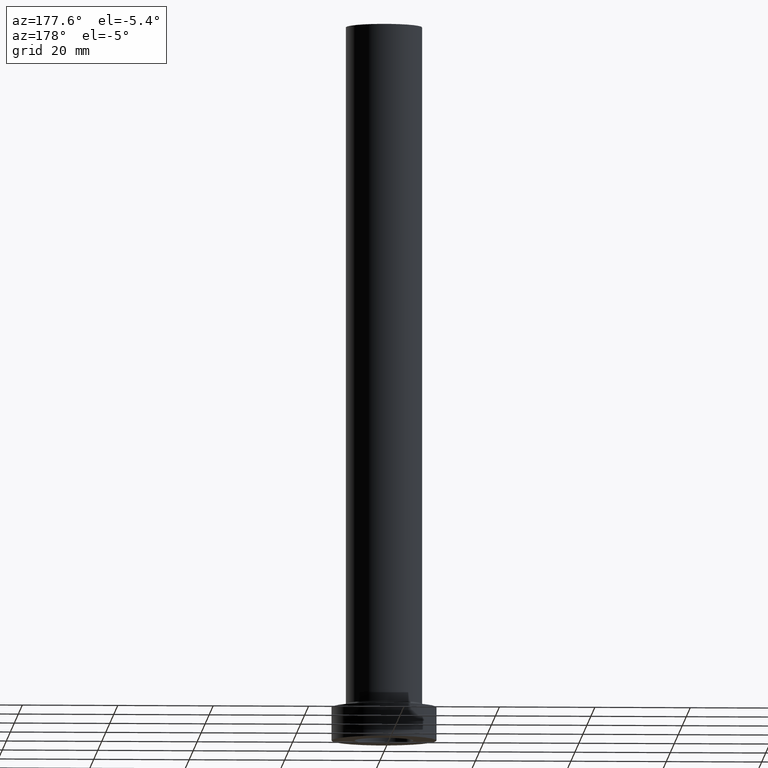
[diagram: clean part render]
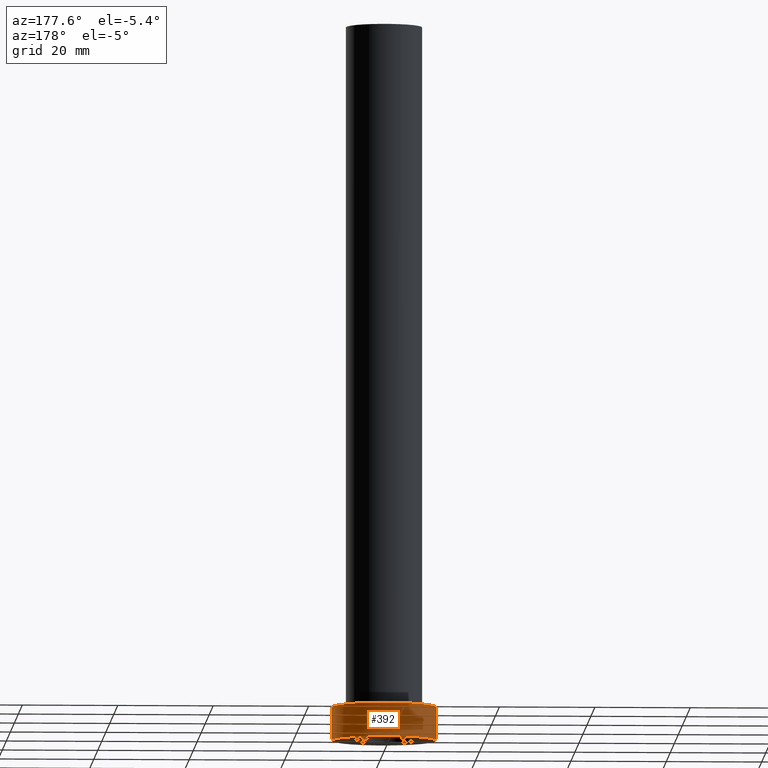
[diagram: same view with one face highlighted and labeled with its STEP entity id]
A machine part, auxiliary view. The second image highlights one B-rep face of the part: STEP entity #392.
In plain terms, the highlighted cylindrical surface (partial cylindrical patch) has radius 11 mm, axis along (-0, -0, -1).
Its self-contained STEP definition (entity closure, byte-faithful):
#21 = CARTESIAN_POINT ( 'NONE',  ( 11.00000000000000000, 1.347111479062088405E-15, 0.000000000000000000 ) ) ;
#24 = EDGE_CURVE ( 'NONE', #144, #366, #30, .T. ) ;
#29 = ORIENTED_EDGE ( 'NONE', *, *, #373, .F. ) ;
#30 = CIRCLE ( 'NONE', #189, 11.00000000000000000 ) ;
#33 = CIRCLE ( 'NONE', #384, 11.00000000000000000 ) ;
#41 = VECTOR ( 'NONE', #55, 1000.000000000000000 ) ;
#50 = CARTESIAN_POINT ( 'NONE',  ( 0.000000000000000000, 0.000000000000000000, 7.000000000000000000 ) ) ;
#55 = DIRECTION ( 'NONE',  ( -0.000000000000000000, -0.000000000000000000, -1.000000000000000000 ) ) ;
#79 = VERTEX_POINT ( 'NONE', #227 ) ;
#81 = ORIENTED_EDGE ( 'NONE', *, *, #294, .T. ) ;
#112 = CARTESIAN_POINT ( 'NONE',  ( -11.00000000000000000, 0.000000000000000000, 7.000000000000000000 ) ) ;
#120 = EDGE_CURVE ( 'NONE', #144, #317, #419, .T. ) ;
#134 = VECTOR ( 'NONE', #341, 1000.000000000000000 ) ;
#141 = CARTESIAN_POINT ( 'NONE',  ( 0.000000000000000000, 0.000000000000000000, 0.000000000000000000 ) ) ;
#144 = VERTEX_POINT ( 'NONE', #439 ) ;
#152 = DIRECTION ( 'NONE',  ( 1.000000000000000000, 0.000000000000000000, 0.000000000000000000 ) ) ;
#154 = CARTESIAN_POINT ( 'NONE',  ( -11.00000000000000000, 0.000000000000000000, 7.000000000000000000 ) ) ;
#155 = EDGE_LOOP ( 'NONE', ( #237, #179, #81, #29 ) ) ;
#162 = CYLINDRICAL_SURFACE ( 'NONE', #178, 11.00000000000000000 ) ;
#178 = AXIS2_PLACEMENT_3D ( 'NONE', #50, #191, #224 ) ;
#179 = ORIENTED_EDGE ( 'NONE', *, *, #120, .T. ) ;
#188 = CARTESIAN_POINT ( 'NONE',  ( 0.000000000000000000, 0.000000000000000000, 7.000000000000000000 ) ) ;
#189 = AXIS2_PLACEMENT_3D ( 'NONE', #188, #445, #152 ) ;
#191 = DIRECTION ( 'NONE',  ( -0.000000000000000000, -0.000000000000000000, -1.000000000000000000 ) ) ;
#206 = CARTESIAN_POINT ( 'NONE',  ( 11.00000000000000000, 1.347111479062088405E-15, 7.000000000000000000 ) ) ;
#224 = DIRECTION ( 'NONE',  ( -1.000000000000000000, 0.000000000000000000, 0.000000000000000000 ) ) ;
#227 = CARTESIAN_POINT ( 'NONE',  ( -11.00000000000000000, 0.000000000000000000, 0.000000000000000000 ) ) ;
#237 = ORIENTED_EDGE ( 'NONE', *, *, #24, .F. ) ;
#251 = DIRECTION ( 'NONE',  ( 1.000000000000000000, 0.000000000000000000, 0.000000000000000000 ) ) ;
#264 = LINE ( 'NONE', #154, #41 ) ;
#294 = EDGE_CURVE ( 'NONE', #317, #79, #33, .T. ) ;
#317 = VERTEX_POINT ( 'NONE', #21 ) ;
#341 = DIRECTION ( 'NONE',  ( -0.000000000000000000, -0.000000000000000000, -1.000000000000000000 ) ) ;
#363 = DIRECTION ( 'NONE',  ( 0.000000000000000000, 0.000000000000000000, 1.000000000000000000 ) ) ;
#366 = VERTEX_POINT ( 'NONE', #112 ) ;
#371 = FACE_OUTER_BOUND ( 'NONE', #155, .T. ) ;
#373 = EDGE_CURVE ( 'NONE', #366, #79, #264, .T. ) ;
#384 = AXIS2_PLACEMENT_3D ( 'NONE', #141, #363, #251 ) ;
#392 = ADVANCED_FACE ( 'NONE', ( #371 ), #162, .T. ) ;
#419 = LINE ( 'NONE', #206, #134 ) ;
#439 = CARTESIAN_POINT ( 'NONE',  ( 11.00000000000000000, 1.347111479062088405E-15, 7.000000000000000000 ) ) ;
#445 = DIRECTION ( 'NONE',  ( 0.000000000000000000, 0.000000000000000000, 1.000000000000000000 ) ) ;